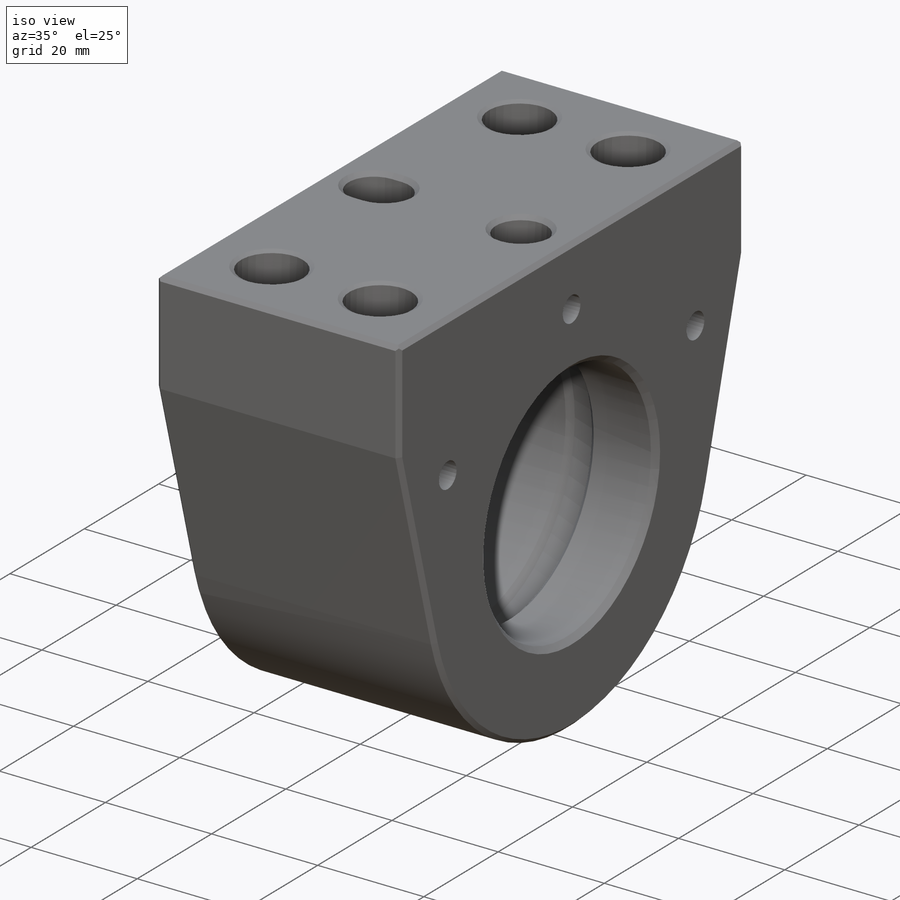
[diagram: iso view]
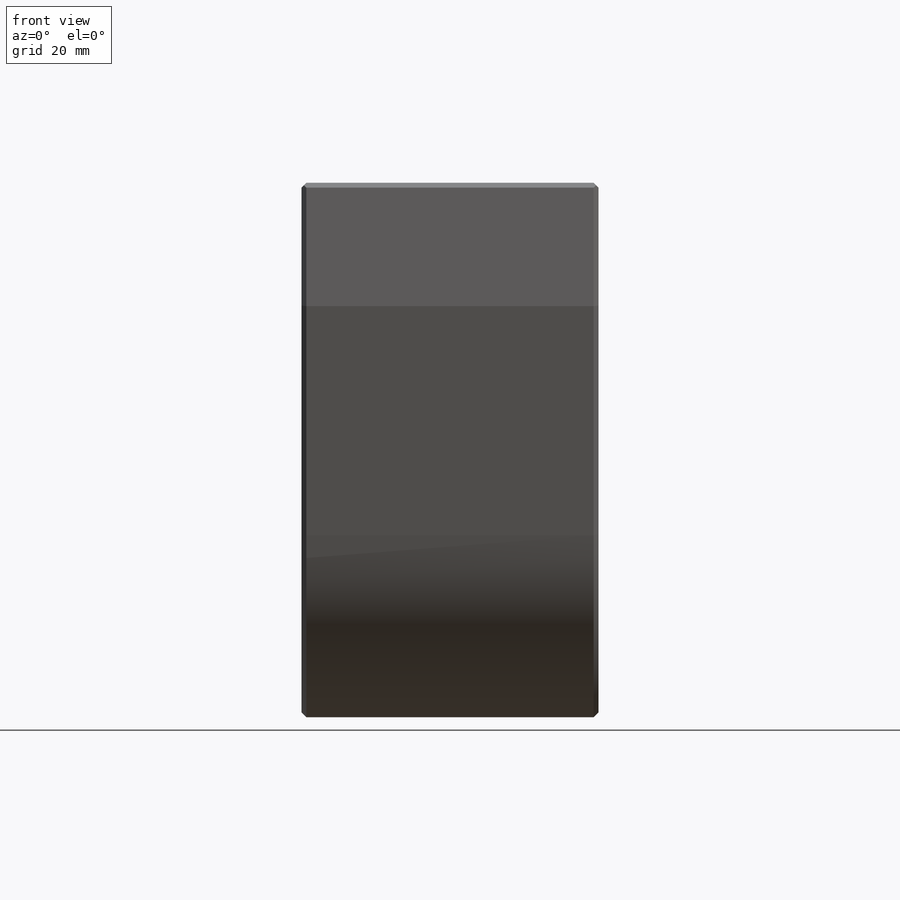
[diagram: front view]
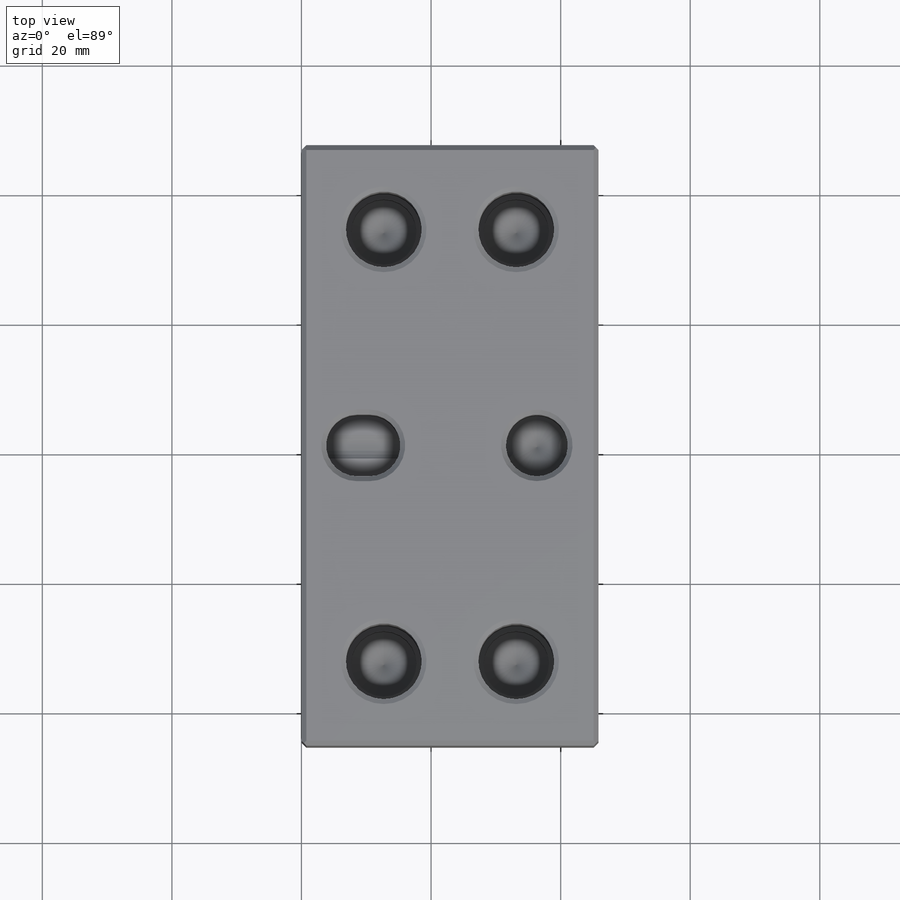
[diagram: top view]
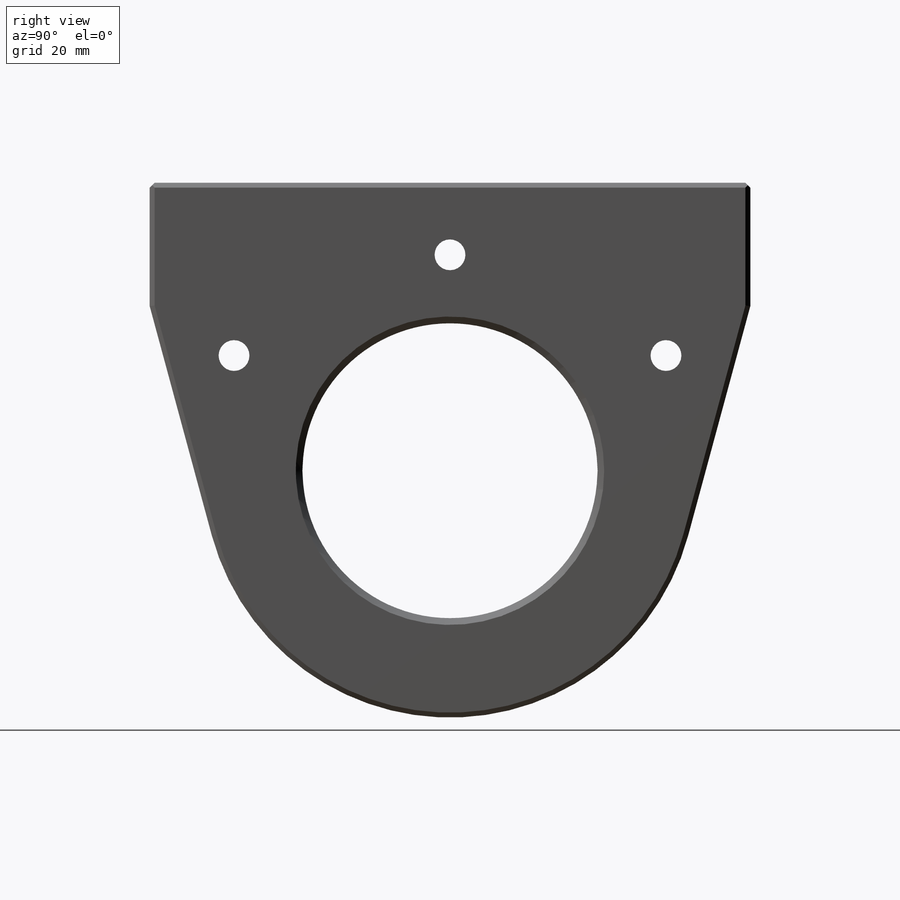
[diagram: right view]
SOLIDWORKS PART (.sldprt)
format: sldprt  version: not decoded by parser v0  size: 626,176 bytes
history: native  units: mm
features: sketch x9, plane x4, chamfer x4, hole x3, material x1, revolve x1, thread x1, extrude x1, cut_extrude x1 (+12 scaffold rows collapsed)
feature tree (37):
  scaffold x12  (default folders/planes/origin — collapsed)
  material  "2024-T351 Al"
  plane  "XY"
  plane  "XZ"
  plane  "YZ"
  sketch  "Sketch1"  dims[c1.D1=45.5676mm c1.D2=~50.81524mm c1.D3=76.2mm c1.D4=12.827mm c1.D5=45.847mm c1.D6=53.34mm c1.D7=5.08mm c2.D6=1.016mm]
  revolve  "Revolve1"  [1 undecoded]
  thread  "Cosmetic Thread1"  Diameter=47.625mm  [1 undecoded]
  chamfer  "Chamfer1"  Distance=1.016mm Angle=45deg
  sketch  "Sketch2"  dims[c1.D1=44.45mm c1.D2=9.525mm c1.D3=28.575mm c1.D4=~5.672198mm c2.D4=118.0deg c2.D5=12.7mm c2.D6=25.4mm c2.D7=92.71mm c2.D2=~9.580722mm c3.D2=~195.15894deg]
  extrude  "Extrude1"  [1 undecoded]
  plane  "Plane1"  Offset=12.7mm
  sketch  "Sketch3"  dims[c1.D1=9.5377mm c1.D3=6.35mm c1.D2=9.525mm c2.D3=3.048mm c2.D1=~9.54278mm c2.D2=13.3985mm c3.D3=1.905mm]
  cut_extrude  "Cut-Extrude1"  Depth=12.7mm
  chamfer  "Chamfer2"  Distance=0.762mm Angle=45deg
  hole  "3/8 (0.375) Diameter Hole1"  Diameter=9.54278mm Depth=12.7mm
  sketch  "Sketch11"
  sketch  "Sketch10"  dims[hole-wizard template sketch: 40 standard entries collapsed; hole parameters kept: c13.Hole Depth=12.7mm c13.Near C'Sink Dia.=11.049mm c13.D4=~33.297463mm c13.Near C'Sink Angle=90.0deg c14.D5=~14.816244mm c14.Drill Angle=118.0deg]
  hole  "Tapped Hole for 3/8-16 Helicoil1"  Diameter=10.0838mm Depth=29.21mm
  sketch  "Sketch5"  dims[D1=66.675mm D2=20.447mm]
  sketch  "Sketch4"  dims[hole-wizard template sketch: 27 standard entries collapsed; hole parameters kept: c8.Tap Drill Depth=29.21mm c8.Thread Major Dia.=~11.68908mm c8.Thread Depth=22.86mm c8.Near C'Sink Dia.=13.208mm c8.D6=~4.399409mm c8.Near C'Sink Angle=120.0deg c8.D7=~14.816244mm c8.Drill Angle=118.0deg c8.ID=-1.0]
  chamfer  "Chamfer4"  Distance=0.762mm Angle=45deg
  hole  "3/16 (0.1875) Diameter Hole1"  Diameter=4.7625mm Depth=45.847mm
  sketch  "Sketch13"  dims[D1=66.675mm D2=26.67mm D3=11.1252mm]
  sketch  "Sketch12"  dims[hole-wizard template sketch: 60 standard entries collapsed; hole parameters kept: c18.Thru Hole Depth=45.847mm]
  chamfer  "Chamfer6"  Distance=0.762mm Angle=45deg
decode coverage: 17 of 20 modeling features carry decoded parameters
note: ~ marks probable driven/reference dimensions
note: 3 parameter values undecoded
note: suppression state not decoded; provenance and decode notes live in map.json
